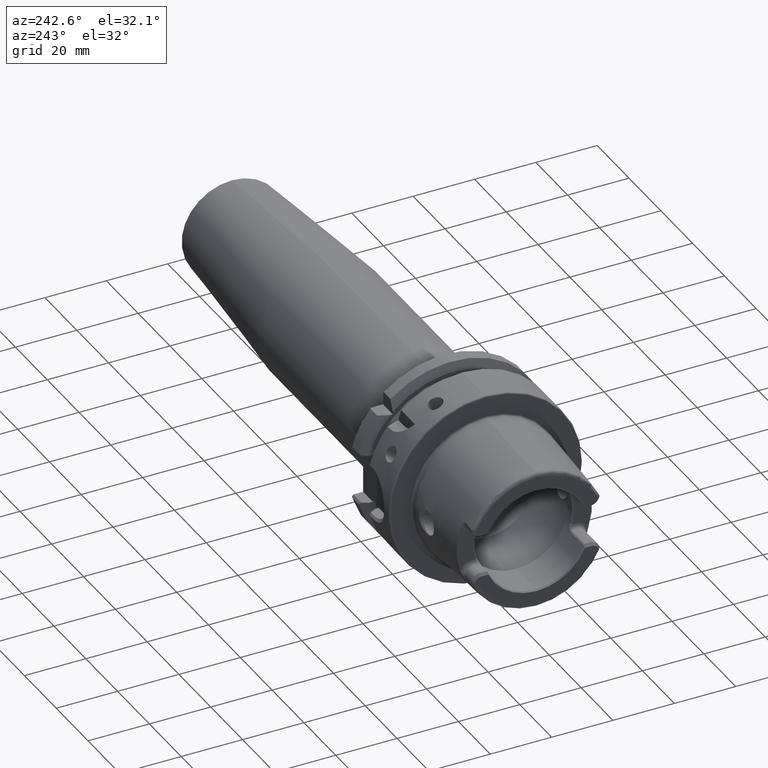
[diagram: clean part render]
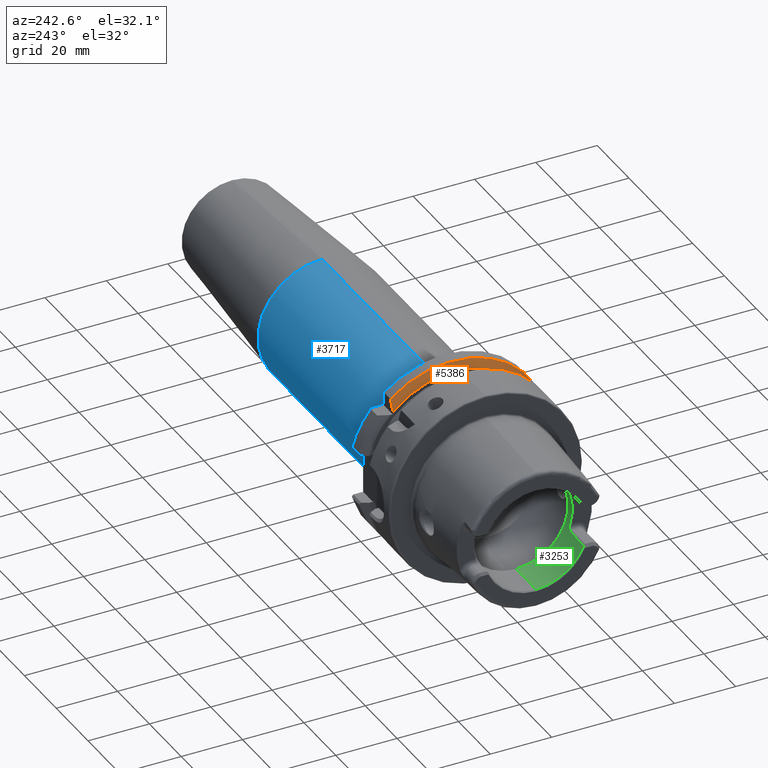
[diagram: same view with three faces highlighted in distinct colors, each labeled with its STEP entity id]
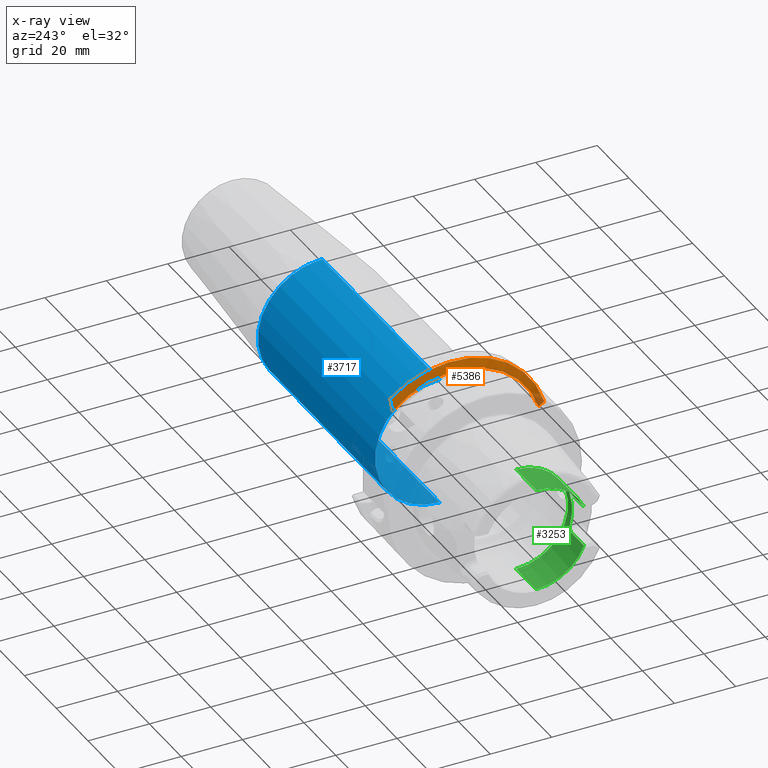
[diagram: x-ray of the same camera — body ghosted, the three highlighted faces saturated]
A machine part, auxiliary view with three faces highlighted in distinct colors.
The next image is the same camera in x-ray (body ghosted, the three faces saturated) — at least one of them is partly hidden behind the body in this view.
Their STEP definitions:

[orange] entity #5386 — the highlighted conical surface has half-angle 60 deg.
#2129=CARTESIAN_POINT('',(2.137749905409E1,-3.007314630073E1,9.373146300730E0));
#2130=CARTESIAN_POINT('',(2.133222858504E1,-3.001053107025E1,9.310531070253E0));
#2131=CARTESIAN_POINT('',(2.124208744942E1,-2.988572482499E1,9.185724824991E0));
#2132=CARTESIAN_POINT('',(2.115274621449E1,-2.976176690400E1,9.061766903995E0));
#2133=CARTESIAN_POINT('',(2.110827564058E1,-2.97E1,9.E0));
#2135=CARTESIAN_POINT('',(1.9875E1,-2.746035349595E1,9.E0));
#2136=CARTESIAN_POINT('',(2.000815730744E1,-2.770305988737E1,9.E0));
#2137=CARTESIAN_POINT('',(2.027705920850E1,-2.819256428174E1,9.E0));
#2138=CARTESIAN_POINT('',(2.068812000744E1,-2.893903747045E1,9.E0));
#2139=CARTESIAN_POINT('',(2.096736261765E1,-2.944497148241E1,9.E0));
#2140=CARTESIAN_POINT('',(2.110827564058E1,-2.97E1,9.E0));
#2142=CARTESIAN_POINT('',(1.9875E1,0.E0,0.E0));
#2143=DIRECTION('',(-1.E0,0.E0,0.E0));
#2144=DIRECTION('',(0.E0,-9.502643112990E-1,3.114445996827E-1));
#2145=AXIS2_PLACEMENT_3D('',#2142,#2143,#2144);
#2147=CARTESIAN_POINT('',(1.9875E1,2.E1,2.085835597842E1));
#2148=CARTESIAN_POINT('',(2.002736603842E1,2.E1,2.122397638966E1));
#2149=CARTESIAN_POINT('',(2.034173038323E1,2.E1,2.196910957718E1));
#2150=CARTESIAN_POINT('',(2.084201817974E1,2.E1,2.312741859173E1));
#2151=CARTESIAN_POINT('',(2.119567680937E1,2.E1,2.392855749531E1));
#2152=CARTESIAN_POINT('',(2.137749905409E1,2.E1,2.433618704728E1));
#2154=CARTESIAN_POINT('',(2.137749905409E1,0.E0,0.E0));
#2155=DIRECTION('',(1.E0,0.E0,0.E0));
#2156=DIRECTION('',(0.E0,6.349206349206E-1,7.725773665802E-1));
#2157=AXIS2_PLACEMENT_3D('',#2154,#2155,#2156);
#2651=CARTESIAN_POINT('',(1.9875E1,-2.746035349595E1,9.E0));
#2652=VERTEX_POINT('',#2651);
#2673=CARTESIAN_POINT('',(1.9875E1,2.E1,2.085835597842E1));
#2675=VERTEX_POINT('',#2673);
#2679=VERTEX_POINT('',#2152);
#2871=VERTEX_POINT('',#2129);
#2872=VERTEX_POINT('',#2133);
#5372=CARTESIAN_POINT('',(2.062624952704E1,0.E0,0.E0));
#5373=DIRECTION('',(1.E0,0.E0,0.E0));
#5374=DIRECTION('',(0.E0,0.E0,1.E0));
#5375=AXIS2_PLACEMENT_3D('',#5372,#5373,#5374);
#5376=CONICAL_SURFACE('',#5375,3.019879765E1,6.E1);
#5377=ORIENTED_EDGE('',*,*,#5122,.T.);
#5378=ORIENTED_EDGE('',*,*,#5156,.F.);
#5380=ORIENTED_EDGE('',*,*,#5379,.T.);
#5382=ORIENTED_EDGE('',*,*,#5381,.T.);
#5383=ORIENTED_EDGE('',*,*,#3829,.T.);
#5384=EDGE_LOOP('',(#5377,#5378,#5380,#5382,#5383));
#5385=FACE_OUTER_BOUND('',#5384,.F.);
#5386=ADVANCED_FACE('',(#5385),#5376,.T.);
#2134=B_SPLINE_CURVE_WITH_KNOTS('',3,(#2129,#2130,#2131,#2132,#2133),
.UNSPECIFIED.,.F.,.F.,(4,1,4),(0.E0,5.E-1,1.E0),.UNSPECIFIED.);
#2141=B_SPLINE_CURVE_WITH_KNOTS('',3,(#2135,#2136,#2137,#2138,#2139,#2140),
.UNSPECIFIED.,.F.,.F.,(4,1,1,4),(0.E0,3.333333333333E-1,6.666666666667E-1,1.E0),
.UNSPECIFIED.);
#2146=CIRCLE('',#2145,2.88975953E1);
#2153=B_SPLINE_CURVE_WITH_KNOTS('',3,(#2147,#2148,#2149,#2150,#2151,#2152),
.UNSPECIFIED.,.F.,.F.,(4,1,1,4),(0.E0,3.333333333333E-1,6.666666666667E-1,1.E0),
.UNSPECIFIED.);
#2158=CIRCLE('',#2157,3.15E1);
#3829=EDGE_CURVE('',#2679,#2871,#2158,.T.);
#5122=EDGE_CURVE('',#2871,#2872,#2134,.T.);
#5156=EDGE_CURVE('',#2652,#2872,#2141,.T.);
#5379=EDGE_CURVE('',#2652,#2675,#2146,.T.);
#5381=EDGE_CURVE('',#2675,#2679,#2153,.T.);

[blue] entity #3717 — the highlighted cylindrical surface (partial cylindrical patch) has radius 21 mm, axis along (1, 0, 0).
#607=DIRECTION('',(-1.E0,0.E0,0.E0));
#608=VECTOR('',#607,7.382207868721E1);
#609=CARTESIAN_POINT('',(1.028220786872E2,0.E0,-2.1E1));
#610=LINE('',#609,#608);
#611=DIRECTION('',(-1.E0,0.E0,0.E0));
#612=VECTOR('',#611,7.382207868721E1);
#613=CARTESIAN_POINT('',(1.028220786872E2,0.E0,2.1E1));
#614=LINE('',#613,#612);
#620=CARTESIAN_POINT('',(1.028220786872E2,0.E0,0.E0));
#621=DIRECTION('',(1.E0,0.E0,0.E0));
#622=DIRECTION('',(0.E0,0.E0,-1.E0));
#623=AXIS2_PLACEMENT_3D('',#620,#621,#622);
#625=CARTESIAN_POINT('',(2.9E1,0.E0,0.E0));
#626=DIRECTION('',(1.E0,0.E0,0.E0));
#627=DIRECTION('',(0.E0,0.E0,-1.E0));
#628=AXIS2_PLACEMENT_3D('',#625,#626,#627);
#2958=CARTESIAN_POINT('',(1.028220786872E2,0.E0,-2.1E1));
#2959=VERTEX_POINT('',#2958);
#2960=CARTESIAN_POINT('',(2.9E1,0.E0,-2.1E1));
#2961=VERTEX_POINT('',#2960);
#2980=CARTESIAN_POINT('',(1.028220786872E2,0.E0,2.1E1));
#2981=VERTEX_POINT('',#2980);
#2982=CARTESIAN_POINT('',(2.9E1,0.E0,2.1E1));
#2983=VERTEX_POINT('',#2982);
#3705=CARTESIAN_POINT('',(1.93E1,0.E0,0.E0));
#3706=DIRECTION('',(1.E0,0.E0,0.E0));
#3707=DIRECTION('',(0.E0,0.E0,1.E0));
#3708=AXIS2_PLACEMENT_3D('',#3705,#3706,#3707);
#3709=CYLINDRICAL_SURFACE('',#3708,2.1E1);
#3710=ORIENTED_EDGE('',*,*,#3695,.F.);
#3711=ORIENTED_EDGE('',*,*,#3672,.T.);
#3712=ORIENTED_EDGE('',*,*,#3699,.T.);
#3714=ORIENTED_EDGE('',*,*,#3713,.F.);
#3715=EDGE_LOOP('',(#3710,#3711,#3712,#3714));
#3716=FACE_OUTER_BOUND('',#3715,.F.);
#3717=ADVANCED_FACE('',(#3716),#3709,.T.);
#624=CIRCLE('',#623,2.1E1);
#629=CIRCLE('',#628,2.1E1);
#3672=EDGE_CURVE('',#2959,#2981,#624,.T.);
#3695=EDGE_CURVE('',#2959,#2961,#610,.T.);
#3699=EDGE_CURVE('',#2981,#2983,#614,.T.);
#3713=EDGE_CURVE('',#2961,#2983,#629,.T.);

[green] entity #3253 — the highlighted cylindrical surface (partial cylindrical patch) has radius 17 mm, axis along (1, 0, 0).
#272=CARTESIAN_POINT('',(-3.15E1,0.E0,0.E0));
#273=DIRECTION('',(1.E0,0.E0,0.E0));
#274=DIRECTION('',(0.E0,-9.221396591734E-1,-3.868571428571E-1));
#275=AXIS2_PLACEMENT_3D('',#272,#273,#274);
#277=DIRECTION('',(-1.E0,-6.903792289323E-9,3.402218956798E-11));
#278=VECTOR('',#277,1.250397459548E1);
#279=CARTESIAN_POINT('',(-1.899602540378E1,0.E0,-1.7E1));
#280=LINE('',#279,#278);
#281=CARTESIAN_POINT('',(-1.899602540378E1,0.E0,0.E0));
#282=DIRECTION('',(1.E0,0.E0,0.E0));
#283=DIRECTION('',(0.E0,0.E0,1.E0));
#284=AXIS2_PLACEMENT_3D('',#281,#282,#283);
#286=DIRECTION('',(-1.E0,2.385283543805E-9,-3.366937683620E-11));
#287=VECTOR('',#286,1.271529946137E1);
#288=CARTESIAN_POINT('',(-1.899602540378E1,0.E0,1.7E1));
#289=LINE('',#288,#287);
#290=CARTESIAN_POINT('',(-3.171132486541E1,0.E0,0.E0));
#291=DIRECTION('',(1.E0,0.E0,0.E0));
#292=DIRECTION('',(0.E0,0.E0,1.E0));
#293=AXIS2_PLACEMENT_3D('',#290,#291,#292);
#295=CARTESIAN_POINT('',(-3.171132486541E1,-1.558889454291E1,6.781324865405E0));
#296=CARTESIAN_POINT('',(-3.164317732329E1,-1.561853940455E1,6.713177323292E0));
#297=CARTESIAN_POINT('',(-3.157492591239E1,-1.564769805039E1,6.644925912391E0));
#298=CARTESIAN_POINT('',(-3.150657142857E1,-1.567637420595E1,6.576571428571E0));
#300=DIRECTION('',(-1.E0,7.806493534994E-11,1.337470641800E-10));
#301=VECTOR('',#300,8.006571291236E0);
#302=CARTESIAN_POINT('',(-2.350000013733E1,-1.567637420657E1,6.576571427501E0));
#303=LINE('',#302,#301);
#304=CARTESIAN_POINT('',(-2.149999999319E1,-1.635630409315E1,4.633715190920E0));
#305=CARTESIAN_POINT('',(-2.149837670162E1,-1.630683774285E1,4.808323859179E0));
#306=CARTESIAN_POINT('',(-2.154698674048E1,-1.620558232555E1,5.145031375457E0));
#307=CARTESIAN_POINT('',(-2.175634281348E1,-1.604191635076E1,5.633411327769E0));
#308=CARTESIAN_POINT('',(-2.209010361832E1,-1.589109359561E1,6.043372323205E0));
#309=CARTESIAN_POINT('',(-2.251604562885E1,-1.576970087508E1,6.351365719671E0));
#310=CARTESIAN_POINT('',(-2.300654217394E1,-1.569288971245E1,6.537435918996E0));
#311=CARTESIAN_POINT('',(-2.333316767882E1,-1.567591106793E1,6.577675397064E0));
#312=CARTESIAN_POINT('',(-2.350000013733E1,-1.567637420657E1,6.576571427501E0));
#314=CARTESIAN_POINT('',(-2.15E1,0.E0,0.E0));
#315=DIRECTION('',(-1.E0,0.E0,0.E0));
#316=DIRECTION('',(0.E0,-9.621355498715E-1,-2.725714285714E-1));
#317=AXIS2_PLACEMENT_3D('',#314,#315,#316);
#319=CARTESIAN_POINT('',(-2.349999986317E1,-1.567637420552E1,
-6.576571429211E0));
#320=CARTESIAN_POINT('',(-2.332970719140E1,-1.567611857761E1,
-6.577180761720E0));
#321=CARTESIAN_POINT('',(-2.299840942678E1,-1.569359910657E1,
-6.535750833257E0));
#322=CARTESIAN_POINT('',(-2.251183524324E1,-1.577082022066E1,
-6.348574599471E0));
#323=CARTESIAN_POINT('',(-2.208814623726E1,-1.589177064458E1,
-6.041605818138E0));
#324=CARTESIAN_POINT('',(-2.175385506539E1,-1.604330085675E1,
-5.629517468253E0));
#325=CARTESIAN_POINT('',(-2.154614938594E1,-1.620674011477E1,
-5.141319066030E0));
#326=CARTESIAN_POINT('',(-2.149842226301E1,-1.630728005799E1,
-4.806762546710E0));
#327=CARTESIAN_POINT('',(-2.150000000035E1,-1.635630437232E1,
-4.633714197965E0));
#329=DIRECTION('',(9.999999410129E-1,1.989017162463E-4,-2.800220290254E-4));
#330=VECTOR('',#329,8.002685056695E0);
#331=CARTESIAN_POINT('',(-3.150268444781E1,-1.567796595331E1,
-6.574330501103E0));
#332=LINE('',#331,#330);
#2537=CARTESIAN_POINT('',(-1.899602540378E1,0.E0,-1.7E1));
#2538=CARTESIAN_POINT('',(-1.899602540378E1,0.E0,1.7E1));
#2539=VERTEX_POINT('',#2537);
#2540=VERTEX_POINT('',#2538);
#2716=VERTEX_POINT('',#304);
#2717=VERTEX_POINT('',#312);
#2720=CARTESIAN_POINT('',(-2.15E1,-1.635630434782E1,-4.633714285714E0));
#2721=VERTEX_POINT('',#2720);
#2724=VERTEX_POINT('',#319);
#2752=CARTESIAN_POINT('',(-3.149999999926E1,-8.632484131626E-8,
-1.699999999957E1));
#2753=VERTEX_POINT('',#2752);
#2754=CARTESIAN_POINT('',(-3.171132486516E1,3.032959195740E-8,
1.699999999957E1));
#2755=VERTEX_POINT('',#2754);
#2774=VERTEX_POINT('',#295);
#2775=VERTEX_POINT('',#298);
#2794=CARTESIAN_POINT('',(-3.150268444781E1,-1.567796595331E1,
-6.574330501103E0));
#2795=VERTEX_POINT('',#2794);
#3226=CARTESIAN_POINT('',(0.E0,0.E0,0.E0));
#3227=DIRECTION('',(1.E0,0.E0,0.E0));
#3228=DIRECTION('',(0.E0,0.E0,1.E0));
#3229=AXIS2_PLACEMENT_3D('',#3226,#3227,#3228);
#3230=CYLINDRICAL_SURFACE('',#3229,1.7E1);
#3232=ORIENTED_EDGE('',*,*,#3231,.T.);
#3233=ORIENTED_EDGE('',*,*,#3207,.F.);
#3235=ORIENTED_EDGE('',*,*,#3234,.F.);
#3236=ORIENTED_EDGE('',*,*,#3203,.T.);
#3238=ORIENTED_EDGE('',*,*,#3237,.T.);
#3240=ORIENTED_EDGE('',*,*,#3239,.T.);
#3242=ORIENTED_EDGE('',*,*,#3241,.F.);
#3244=ORIENTED_EDGE('',*,*,#3243,.F.);
#3246=ORIENTED_EDGE('',*,*,#3245,.F.);
#3248=ORIENTED_EDGE('',*,*,#3247,.F.);
#3250=ORIENTED_EDGE('',*,*,#3249,.F.);
#3251=EDGE_LOOP('',(#3232,#3233,#3235,#3236,#3238,#3240,#3242,#3244,#3246,#3248,
#3250));
#3252=FACE_OUTER_BOUND('',#3251,.F.);
#3253=ADVANCED_FACE('',(#3252),#3230,.F.);
#276=CIRCLE('',#275,1.7E1);
#285=CIRCLE('',#284,1.7E1);
#294=CIRCLE('',#293,1.7E1);
#299=B_SPLINE_CURVE_WITH_KNOTS('',3,(#295,#296,#297,#298),.UNSPECIFIED.,.F.,.F.,
(4,4),(0.E0,1.E0),.UNSPECIFIED.);
#313=B_SPLINE_CURVE_WITH_KNOTS('',3,(#304,#305,#306,#307,#308,#309,#310,#311,
#312),.UNSPECIFIED.,.F.,.F.,(4,1,1,1,1,1,4),(0.E0,1.666666666667E-1,
3.333333333333E-1,5.E-1,6.666666666667E-1,8.333333333333E-1,1.E0),
.UNSPECIFIED.);
#318=CIRCLE('',#317,1.7E1);
#328=B_SPLINE_CURVE_WITH_KNOTS('',3,(#319,#320,#321,#322,#323,#324,#325,#326,
#327),.UNSPECIFIED.,.F.,.F.,(4,1,1,1,1,1,4),(0.E0,1.666666666667E-1,
3.333333333333E-1,5.E-1,6.666666666667E-1,8.333333333333E-1,1.E0),
.UNSPECIFIED.);
#3203=EDGE_CURVE('',#2540,#2755,#289,.T.);
#3207=EDGE_CURVE('',#2539,#2753,#280,.T.);
#3231=EDGE_CURVE('',#2795,#2753,#276,.T.);
#3234=EDGE_CURVE('',#2540,#2539,#285,.T.);
#3237=EDGE_CURVE('',#2755,#2774,#294,.T.);
#3239=EDGE_CURVE('',#2774,#2775,#299,.T.);
#3241=EDGE_CURVE('',#2717,#2775,#303,.T.);
#3243=EDGE_CURVE('',#2716,#2717,#313,.T.);
#3245=EDGE_CURVE('',#2721,#2716,#318,.T.);
#3247=EDGE_CURVE('',#2724,#2721,#328,.T.);
#3249=EDGE_CURVE('',#2795,#2724,#332,.T.);